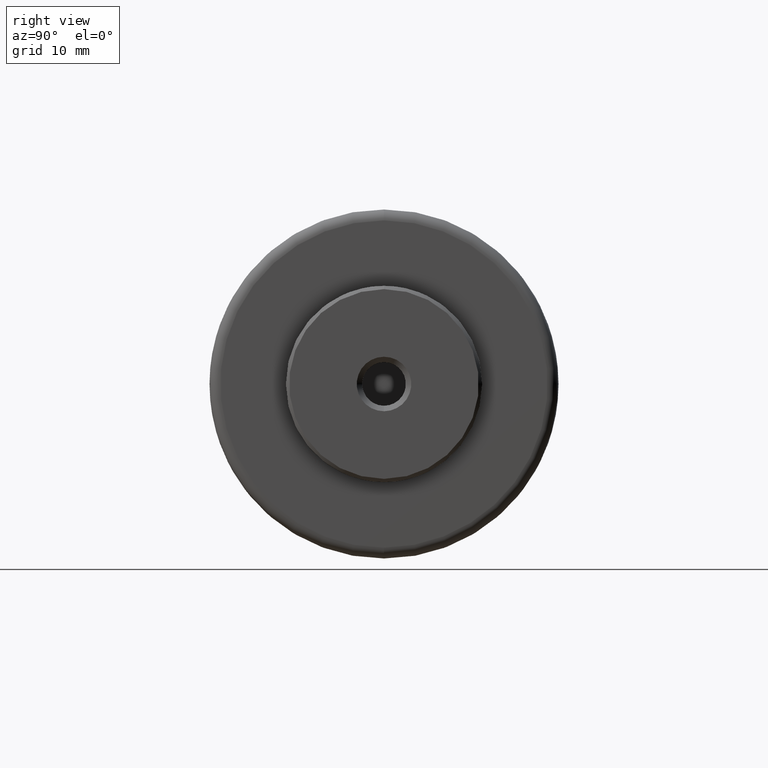
[diagram: clean part render]
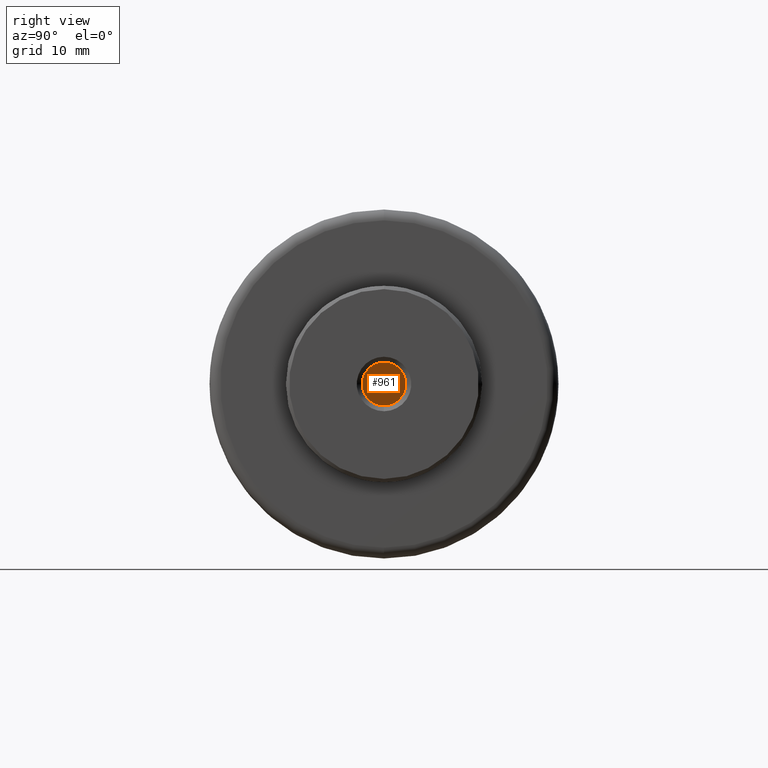
[diagram: same view with one face highlighted and labeled with its STEP entity id]
A machine part, right view. The second image highlights one B-rep face of the part: STEP entity #961.
In plain terms, the highlighted planar face has unit normal (-1, 0, 0).
Its self-contained STEP definition (entity closure, byte-faithful):
#13 = CARTESIAN_POINT ( 'NONE',  ( 35.50000000000009900, 0.0000000000000000000, -1.999999999999998200 ) ) ;
#35 = DIRECTION ( 'NONE',  ( 0.0000000000000000000, 0.0000000000000000000, -1.000000000000000000 ) ) ;
#37 = AXIS2_PLACEMENT_3D ( 'NONE', #976, #1141, #336 ) ;
#149 = PLANE ( 'NONE',  #546 ) ;
#206 = DIRECTION ( 'NONE',  ( 1.000000000000000000, -0.0000000000000000000, -0.0000000000000000000 ) ) ;
#302 = VERTEX_POINT ( 'NONE', #921 ) ;
#336 = DIRECTION ( 'NONE',  ( 0.0000000000000000000, 0.0000000000000000000, -1.000000000000000000 ) ) ;
#387 = ORIENTED_EDGE ( 'NONE', *, *, #1098, .T. ) ;
#457 = DIRECTION ( 'NONE',  ( 0.0000000000000000000, 0.0000000000000000000, 1.000000000000000000 ) ) ;
#531 = EDGE_CURVE ( 'NONE', #302, #774, #930, .T. ) ;
#546 = AXIS2_PLACEMENT_3D ( 'NONE', #618, #1004, #457 ) ;
#559 = CIRCLE ( 'NONE', #37, 1.999999999999998200 ) ;
#574 = AXIS2_PLACEMENT_3D ( 'NONE', #1081, #206, #35 ) ;
#618 = CARTESIAN_POINT ( 'NONE',  ( 35.50000000000009900, 1.999999999999998200, 0.0000000000000000000 ) ) ;
#747 = ORIENTED_EDGE ( 'NONE', *, *, #531, .T. ) ;
#752 = EDGE_LOOP ( 'NONE', ( #387, #747 ) ) ;
#774 = VERTEX_POINT ( 'NONE', #13 ) ;
#921 = CARTESIAN_POINT ( 'NONE',  ( 35.50000000000009900, 2.449293598294704900E-016, 1.999999999999998200 ) ) ;
#930 = CIRCLE ( 'NONE', #574, 1.999999999999998200 ) ;
#961 = ADVANCED_FACE ( 'NONE', ( #1151 ), #149, .F. ) ;
#976 = CARTESIAN_POINT ( 'NONE',  ( 35.50000000000009900, 0.0000000000000000000, 0.0000000000000000000 ) ) ;
#1004 = DIRECTION ( 'NONE',  ( -1.000000000000000000, 0.0000000000000000000, 0.0000000000000000000 ) ) ;
#1081 = CARTESIAN_POINT ( 'NONE',  ( 35.50000000000009900, 0.0000000000000000000, 0.0000000000000000000 ) ) ;
#1098 = EDGE_CURVE ( 'NONE', #774, #302, #559, .T. ) ;
#1141 = DIRECTION ( 'NONE',  ( 1.000000000000000000, -0.0000000000000000000, -0.0000000000000000000 ) ) ;
#1151 = FACE_OUTER_BOUND ( 'NONE', #752, .T. ) ;